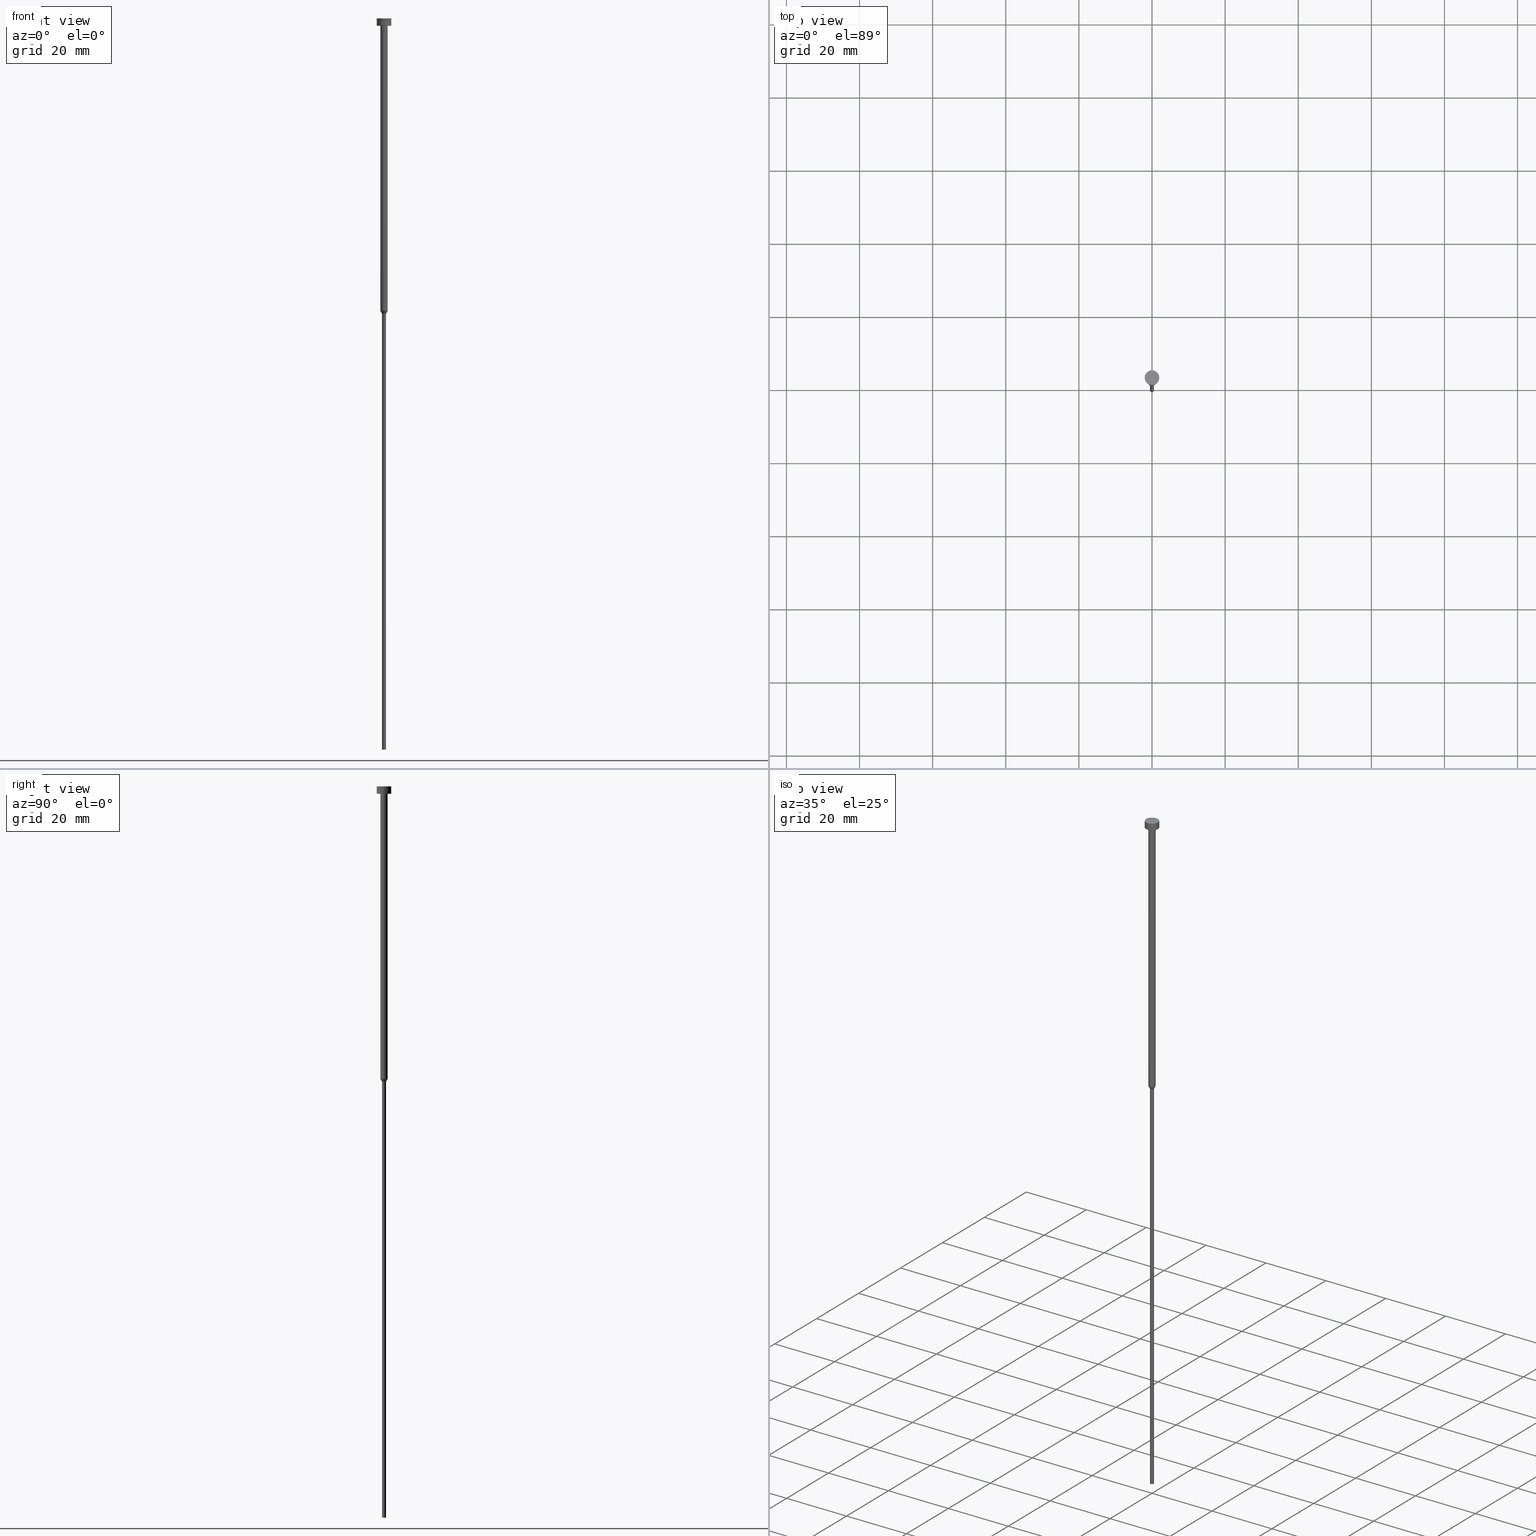
[diagram: canonical four-view strip — front | top / right | iso, engineering-drawing reading convention]
A machine part, canonical four-view strip (front | top / right | iso — engineering-drawing reading convention). The complete STEP part file that produces these views, byte-faithful:
ISO-10303-21;
HEADER;
FILE_DESCRIPTION (( 'STEP AP203' ),
    '1' );
FILE_NAME ('cb18.STEP',
    '2023-02-13T11:49:43',
    ( '' ),
    ( '' ),
    'SwSTEP 2.0',
    'SolidWorks 2019',
    '' );
FILE_SCHEMA (( 'CONFIG_CONTROL_DESIGN' ));
ENDSEC;

DATA;
#1 = DATE_AND_TIME ( #332, #293 ) ;
#2 = ORIENTED_EDGE ( 'NONE', *, *, #114, .F. ) ;
#3 = ORIENTED_EDGE ( 'NONE', *, *, #45, .T. ) ;
#4 = EDGE_CURVE ( 'NONE', #109, #78, #339, .T. ) ;
#5 = AXIS2_PLACEMENT_3D ( 'NONE', #18, #246, #345 ) ;
#6 = SHAPE_DEFINITION_REPRESENTATION ( #87, #342 ) ;
#7 = SECURITY_CLASSIFICATION_LEVEL ( 'unclassified' ) ;
#8 = EDGE_LOOP ( 'NONE', ( #317, #113, #299, #243 ) ) ;
#9 = CALENDAR_DATE ( 2023, 13, 2 ) ;
#10 = COORDINATED_UNIVERSAL_TIME_OFFSET ( 1, 0, .AHEAD. ) ;
#11 = ORIENTED_EDGE ( 'NONE', *, *, #203, .F. ) ;
#12 = CARTESIAN_POINT ( 'NONE',  ( 0.5500000000000000444, 0.000000000000000000, -80.77942286340599765 ) ) ;
#13 = EDGE_CURVE ( 'NONE', #78, #75, #134, .T. ) ;
#14 = PERSON ( 'NEUR�EN�', 'NEUR�EN�', 'NEUR�EN�', ('NEUR�EN�'), ('NEUR�EN�'), ('NEUR�EN�') ) ;
#15 = VECTOR ( 'NONE', #183, 1000.000000000000114 ) ;
#16 = CARTESIAN_POINT ( 'NONE',  ( 0.000000000000000000, 0.000000000000000000, -200.0000000000000000 ) ) ;
#17 = DIRECTION ( 'NONE',  ( 0.000000000000000000, -0.000000000000000000, 1.000000000000000000 ) ) ;
#18 = CARTESIAN_POINT ( 'NONE',  ( 0.000000000000000000, 0.000000000000000000, -200.0000000000000000 ) ) ;
#19 = PRODUCT_RELATED_PRODUCT_CATEGORY ( 'detail', '', ( #253 ) ) ;
#20 = VECTOR ( 'NONE', #130, 1000.000000000000000 ) ;
#21 = ORIENTED_EDGE ( 'NONE', *, *, #141, .F. ) ;
#22 = DIRECTION ( 'NONE',  ( 1.000000000000000000, 0.000000000000000000, 0.000000000000000000 ) ) ;
#23 = ADVANCED_FACE ( 'NONE', ( #295 ), #128, .T. ) ;
#24 = CARTESIAN_POINT ( 'NONE',  ( 1.000000000000003109, 0.000000000000000000, -80.00000000000000000 ) ) ;
#25 = VERTEX_POINT ( 'NONE', #122 ) ;
#26 = CIRCLE ( 'NONE', #319, 2.000000000000000000 ) ;
#27 = FACE_OUTER_BOUND ( 'NONE', #31, .T. ) ;
#28 = AXIS2_PLACEMENT_3D ( 'NONE', #53, #76, #222 ) ;
#29 = CALENDAR_DATE ( 2023, 13, 2 ) ;
#30 = CYLINDRICAL_SURFACE ( 'NONE', #228, 1.000000000000003331 ) ;
#31 = EDGE_LOOP ( 'NONE', ( #47, #154, #289, #40 ) ) ;
#32 = APPROVAL_STATUS ( 'not_yet_approved' ) ;
#33 = VERTEX_POINT ( 'NONE', #331 ) ;
#34 = EDGE_CURVE ( 'NONE', #64, #25, #159, .T. ) ;
#35 = ORIENTED_EDGE ( 'NONE', *, *, #257, .T. ) ;
#36 = DIRECTION ( 'NONE',  ( 1.000000000000000000, 0.000000000000000000, 0.000000000000000000 ) ) ;
#37 = APPROVAL_DATE_TIME ( #68, #54 ) ;
#38 = PERSON_AND_ORGANIZATION_ROLE ( 'design_supplier' ) ;
#39 = AXIS2_PLACEMENT_3D ( 'NONE', #234, #178, #36 ) ;
#40 = ORIENTED_EDGE ( 'NONE', *, *, #138, .F. ) ;
#41 = CARTESIAN_POINT ( 'NONE',  ( 0.000000000000000000, 0.000000000000000000, 0.000000000000000000 ) ) ;
#42 = DESIGN_CONTEXT ( 'detailed design', #326, 'design' ) ;
#43 = DIRECTION ( 'NONE',  ( 1.000000000000000000, 0.000000000000000000, 0.000000000000000000 ) ) ;
#44 = PLANE ( 'NONE',  #5 ) ;
#45 = EDGE_CURVE ( 'NONE', #231, #259, #129, .T. ) ;
#46 = DIRECTION ( 'NONE',  ( -0.000000000000000000, -0.000000000000000000, 1.000000000000000000 ) ) ;
#47 = ORIENTED_EDGE ( 'NONE', *, *, #306, .T. ) ;
#48 = AXIS2_PLACEMENT_3D ( 'NONE', #16, #212, #187 ) ;
#49 = ORIENTED_EDGE ( 'NONE', *, *, #84, .F. ) ;
#50 = CYLINDRICAL_SURFACE ( 'NONE', #99, 0.5499999999999999334 ) ;
#51 = FACE_OUTER_BOUND ( 'NONE', #8, .T. ) ;
#52 = DIRECTION ( 'NONE',  ( -0.000000000000000000, -0.000000000000000000, 1.000000000000000000 ) ) ;
#53 = CARTESIAN_POINT ( 'NONE',  ( 0.000000000000000000, 0.000000000000000000, 0.000000000000000000 ) ) ;
#54 = APPROVAL ( #258, 'NEUR�EN�' ) ;
#55 = PERSON_AND_ORGANIZATION ( #14, #308 ) ;
#56 = DIRECTION ( 'NONE',  ( 0.4999999999999993339, 0.000000000000000000, 0.8660254037844389297 ) ) ;
#57 = CONICAL_SURFACE ( 'NONE', #142, 1.000000000000003109, 0.5235987755982981495 ) ;
#58 = COORDINATED_UNIVERSAL_TIME_OFFSET ( 1, 0, .AHEAD. ) ;
#59 = PERSON_AND_ORGANIZATION_ROLE ( 'classification_officer' ) ;
#60 = ADVANCED_FACE ( 'NONE', ( #337 ), #137, .T. ) ;
#61 = EDGE_CURVE ( 'NONE', #259, #227, #279, .T. ) ;
#62 = ORIENTED_EDGE ( 'NONE', *, *, #13, .F. ) ;
#63 = DIRECTION ( 'NONE',  ( 1.000000000000000000, 0.000000000000000000, 0.000000000000000000 ) ) ;
#64 = VERTEX_POINT ( 'NONE', #107 ) ;
#65 = VECTOR ( 'NONE', #79, 1000.000000000000000 ) ;
#66 = DIRECTION ( 'NONE',  ( -0.000000000000000000, -0.000000000000000000, 1.000000000000000000 ) ) ;
#67 = CARTESIAN_POINT ( 'NONE',  ( 1.000000000000003109, 0.000000000000000000, -80.00000000000000000 ) ) ;
#68 = DATE_AND_TIME ( #211, #165 ) ;
#69 = DIRECTION ( 'NONE',  ( -0.000000000000000000, -0.000000000000000000, 1.000000000000000000 ) ) ;
#70 = CARTESIAN_POINT ( 'NONE',  ( 0.000000000000000000, 0.000000000000000000, -80.00000000000000000 ) ) ;
#71 = DIRECTION ( 'NONE',  ( 1.000000000000000000, 0.000000000000000000, 0.000000000000000000 ) ) ;
#72 = AXIS2_PLACEMENT_3D ( 'NONE', #169, #17, #185 ) ;
#73 = DIRECTION ( 'NONE',  ( 1.000000000000000000, 0.000000000000000000, 0.000000000000000000 ) ) ;
#74 = ADVANCED_FACE ( 'NONE', ( #313 ), #127, .T. ) ;
#75 = VERTEX_POINT ( 'NONE', #67 ) ;
#76 = DIRECTION ( 'NONE',  ( -0.000000000000000000, -0.000000000000000000, 1.000000000000000000 ) ) ;
#77 = CLOSED_SHELL ( 'NONE', ( #23, #74, #217, #166, #312, #352, #60, #173, #336, #125, #315 ) ) ;
#78 = VERTEX_POINT ( 'NONE', #12 ) ;
#79 = DIRECTION ( 'NONE',  ( -0.000000000000000000, -0.000000000000000000, 1.000000000000000000 ) ) ;
#80 = CARTESIAN_POINT ( 'NONE',  ( 0.5499999999999999334, 0.000000000000000000, 0.000000000000000000 ) ) ;
#81 = CIRCLE ( 'NONE', #149, 0.5500000000000000444 ) ;
#82 = APPROVAL_PERSON_ORGANIZATION ( #304, #54, #101 ) ;
#83 = CARTESIAN_POINT ( 'NONE',  ( 0.000000000000000000, 0.000000000000000000, 0.000000000000000000 ) ) ;
#84 = EDGE_CURVE ( 'NONE', #109, #191, #214, .T. ) ;
#85 = APPLICATION_PROTOCOL_DEFINITION ( 'international standard', 'config_control_design', 1994, #326 ) ;
#86 = COORDINATED_UNIVERSAL_TIME_OFFSET ( 1, 0, .AHEAD. ) ;
#87 = PRODUCT_DEFINITION_SHAPE ( 'NONE', 'NONE',  #296 ) ;
#88 =( NAMED_UNIT ( * ) SI_UNIT ( $, .STERADIAN. ) SOLID_ANGLE_UNIT ( ) );
#89 = EDGE_CURVE ( 'NONE', #75, #191, #123, .T. ) ;
#90 = CALENDAR_DATE ( 2023, 13, 2 ) ;
#91 = AXIS2_PLACEMENT_3D ( 'NONE', #350, #111, #22 ) ;
#92 = CC_DESIGN_APPROVAL ( #233, ( #168 ) ) ;
#93 = DIRECTION ( 'NONE',  ( -0.000000000000000000, -0.000000000000000000, 1.000000000000000000 ) ) ;
#94 = ORIENTED_EDGE ( 'NONE', *, *, #297, .T. ) ;
#95 = CARTESIAN_POINT ( 'NONE',  ( 0.000000000000000000, 0.000000000000000000, 0.000000000000000000 ) ) ;
#96 = PERSON_AND_ORGANIZATION_ROLE ( 'design_owner' ) ;
#97 = CARTESIAN_POINT ( 'NONE',  ( 0.000000000000000000, 0.000000000000000000, -2.000000000000000444 ) ) ;
#98 = DIRECTION ( 'NONE',  ( -0.000000000000000000, -0.000000000000000000, 1.000000000000000000 ) ) ;
#99 = AXIS2_PLACEMENT_3D ( 'NONE', #232, #98, #145 ) ;
#100 = CARTESIAN_POINT ( 'NONE',  ( -2.000000000000000000, 2.449293598294706414E-16, -2.000000000000000444 ) ) ;
#101 = APPROVAL_ROLE ( '' ) ;
#102 = DIRECTION ( 'NONE',  ( 1.000000000000000000, 0.000000000000000000, 0.000000000000000000 ) ) ;
#103 = CIRCLE ( 'NONE', #91, 2.000000000000000000 ) ;
#104 = LOCAL_TIME ( 12, 49, 43.00000000000000000, #58 ) ;
#105 = ORIENTED_EDGE ( 'NONE', *, *, #34, .T. ) ;
#106 = PLANE ( 'NONE',  #224 ) ;
#107 = CARTESIAN_POINT ( 'NONE',  ( 1.000000000000003553, 0.000000000000000000, -2.000000000000000444 ) ) ;
#108 = DIRECTION ( 'NONE',  ( 1.000000000000000000, 0.000000000000000000, 0.000000000000000000 ) ) ;
#109 = VERTEX_POINT ( 'NONE', #276 ) ;
#110 = FACE_OUTER_BOUND ( 'NONE', #146, .T. ) ;
#111 = DIRECTION ( 'NONE',  ( -0.000000000000000000, -0.000000000000000000, 1.000000000000000000 ) ) ;
#112 = CIRCLE ( 'NONE', #180, 0.5499999999999999334 ) ;
#113 = ORIENTED_EDGE ( 'NONE', *, *, #203, .T. ) ;
#114 = EDGE_CURVE ( 'NONE', #259, #231, #103, .T. ) ;
#115 = DIRECTION ( 'NONE',  ( -1.000000000000000000, 0.000000000000000000, -0.000000000000000000 ) ) ;
#116 = AXIS2_PLACEMENT_3D ( 'NONE', #97, #205, #43 ) ;
#117 = ORIENTED_EDGE ( 'NONE', *, *, #207, .F. ) ;
#118 = APPROVAL_DATE_TIME ( #270, #233 ) ;
#119 = PERSON_AND_ORGANIZATION ( #14, #308 ) ;
#120 = ORIENTED_EDGE ( 'NONE', *, *, #114, .T. ) ;
#121 = DATE_TIME_ROLE ( 'creation_date' ) ;
#122 = CARTESIAN_POINT ( 'NONE',  ( -1.000000000000003553, 1.224646799147357398E-16, -2.000000000000000444 ) ) ;
#123 = CIRCLE ( 'NONE', #252, 1.000000000000003109 ) ;
#124 = CARTESIAN_POINT ( 'NONE',  ( 0.000000000000000000, 0.000000000000000000, -2.000000000000000444 ) ) ;
#125 = ADVANCED_FACE ( 'NONE', ( #110 ), #322, .T. ) ;
#126 = CARTESIAN_POINT ( 'NONE',  ( 0.5499999999999999334, 0.000000000000000000, -200.0000000000000000 ) ) ;
#127 = CYLINDRICAL_SURFACE ( 'NONE', #201, 1.000000000000003331 ) ;
#128 = CYLINDRICAL_SURFACE ( 'NONE', #136, 2.000000000000000000 ) ;
#129 = CIRCLE ( 'NONE', #116, 2.000000000000000000 ) ;
#130 = DIRECTION ( 'NONE',  ( -0.000000000000000000, -0.000000000000000000, 1.000000000000000000 ) ) ;
#131 = LOCAL_TIME ( 12, 49, 43.00000000000000000, #307 ) ;
#132 = CARTESIAN_POINT ( 'NONE',  ( 0.000000000000000000, 0.000000000000000000, -200.0000000000000000 ) ) ;
#133 = DIRECTION ( 'NONE',  ( -0.000000000000000000, -0.000000000000000000, 1.000000000000000000 ) ) ;
#134 = LINE ( 'NONE', #24, #237 ) ;
#135 = CARTESIAN_POINT ( 'NONE',  ( -0.5499999999999999334, 6.735557395310441284E-17, 0.000000000000000000 ) ) ;
#136 = AXIS2_PLACEMENT_3D ( 'NONE', #95, #155, #157 ) ;
#137 = CONICAL_SURFACE ( 'NONE', #186, 1.000000000000003109, 0.5235987755982981495 ) ;
#138 = EDGE_CURVE ( 'NONE', #309, #78, #193, .T. ) ;
#139 = CARTESIAN_POINT ( 'NONE',  ( -2.000000000000000000, 2.449293598294706414E-16, -2.449293598294705921E-16 ) ) ;
#140 = DIRECTION ( 'NONE',  ( -0.000000000000000000, -0.000000000000000000, 1.000000000000000000 ) ) ;
#141 = EDGE_CURVE ( 'NONE', #328, #227, #26, .T. ) ;
#142 = AXIS2_PLACEMENT_3D ( 'NONE', #288, #189, #170 ) ;
#143 = CARTESIAN_POINT ( 'NONE',  ( 2.000000000000000000, 0.000000000000000000, 0.000000000000000000 ) ) ;
#144 = EDGE_LOOP ( 'NONE', ( #49, #347, #278, #11 ) ) ;
#145 = DIRECTION ( 'NONE',  ( 1.000000000000000000, 0.000000000000000000, 0.000000000000000000 ) ) ;
#146 = EDGE_LOOP ( 'NONE', ( #272, #120, #240, #117 ) ) ;
#147 = APPROVAL ( #32, 'NEUR�EN�' ) ;
#148 = EDGE_LOOP ( 'NONE', ( #3, #314, #21, #286 ) ) ;
#149 = AXIS2_PLACEMENT_3D ( 'NONE', #171, #197, #348 ) ;
#150 = MECHANICAL_CONTEXT ( 'NONE', #235, 'mechanical' ) ;
#151 = CC_DESIGN_SECURITY_CLASSIFICATION ( #208, ( #168 ) ) ;
#152 = APPROVAL_ROLE ( '' ) ;
#153 = COORDINATED_UNIVERSAL_TIME_OFFSET ( 1, 0, .AHEAD. ) ;
#154 = ORIENTED_EDGE ( 'NONE', *, *, #349, .T. ) ;
#155 = DIRECTION ( 'NONE',  ( -0.000000000000000000, -0.000000000000000000, 1.000000000000000000 ) ) ;
#156 = DIRECTION ( 'NONE',  ( -0.000000000000000000, -0.000000000000000000, 1.000000000000000000 ) ) ;
#157 = DIRECTION ( 'NONE',  ( 1.000000000000000000, 0.000000000000000000, 0.000000000000000000 ) ) ;
#158 = EDGE_CURVE ( 'NONE', #78, #109, #81, .T. ) ;
#159 = CIRCLE ( 'NONE', #192, 1.000000000000003553 ) ;
#160 = UNCERTAINTY_MEASURE_WITH_UNIT (LENGTH_MEASURE( 1.000000000000000082E-05 ), #250, 'distance_accuracy_value', 'NONE');
#161 = DIRECTION ( 'NONE',  ( -0.000000000000000000, -0.000000000000000000, 1.000000000000000000 ) ) ;
#162 = CARTESIAN_POINT ( 'NONE',  ( 0.000000000000000000, 0.000000000000000000, -80.00000000000000000 ) ) ;
#163 = EDGE_LOOP ( 'NONE', ( #344, #176 ) ) ;
#164 = DIRECTION ( 'NONE',  ( -0.000000000000000000, -0.000000000000000000, 1.000000000000000000 ) ) ;
#165 = LOCAL_TIME ( 12, 49, 43.00000000000000000, #10 ) ;
#166 = ADVANCED_FACE ( 'NONE', ( #27 ), #221, .T. ) ;
#167 =( GEOMETRIC_REPRESENTATION_CONTEXT ( 3 ) GLOBAL_UNCERTAINTY_ASSIGNED_CONTEXT ( ( #160 ) ) GLOBAL_UNIT_ASSIGNED_CONTEXT ( ( #250, #351, #88 ) ) REPRESENTATION_CONTEXT ( 'NONE', 'WORKASPACE' ) );
#168 = PRODUCT_DEFINITION_FORMATION_WITH_SPECIFIED_SOURCE ( 'LIBOVOLN�', '', #253, .NOT_KNOWN. ) ;
#169 = CARTESIAN_POINT ( 'NONE',  ( 0.000000000000000000, 0.000000000000000000, -1.224646799147352961E-16 ) ) ;
#170 = DIRECTION ( 'NONE',  ( 1.000000000000000000, 0.000000000000000000, 0.000000000000000000 ) ) ;
#171 = CARTESIAN_POINT ( 'NONE',  ( 0.000000000000000000, 0.000000000000000000, -80.77942286340599765 ) ) ;
#172 = APPROVAL_ROLE ( '' ) ;
#173 = ADVANCED_FACE ( 'NONE', ( #51 ), #30, .T. ) ;
#174 = CIRCLE ( 'NONE', #39, 1.000000000000003109 ) ;
#175 = CC_DESIGN_APPROVAL ( #54, ( #208 ) ) ;
#176 = ORIENTED_EDGE ( 'NONE', *, *, #207, .T. ) ;
#177 = EDGE_CURVE ( 'NONE', #231, #328, #199, .T. ) ;
#178 = DIRECTION ( 'NONE',  ( -0.000000000000000000, -0.000000000000000000, 1.000000000000000000 ) ) ;
#179 = ORIENTED_EDGE ( 'NONE', *, *, #34, .F. ) ;
#180 = AXIS2_PLACEMENT_3D ( 'NONE', #132, #343, #108 ) ;
#181 = EDGE_LOOP ( 'NONE', ( #316, #340, #239, #62 ) ) ;
#182 = CC_DESIGN_PERSON_AND_ORGANIZATION_ASSIGNMENT ( #261, #38, ( #168 ) ) ;
#183 = DIRECTION ( 'NONE',  ( -0.4999999999999993339, 6.123233995736757408E-17, 0.8660254037844389297 ) ) ;
#184 = DIRECTION ( 'NONE',  ( -0.000000000000000000, -0.000000000000000000, 1.000000000000000000 ) ) ;
#185 = DIRECTION ( 'NONE',  ( 1.000000000000000000, 0.000000000000000000, 0.000000000000000000 ) ) ;
#186 = AXIS2_PLACEMENT_3D ( 'NONE', #162, #164, #102 ) ;
#187 = DIRECTION ( 'NONE',  ( 1.000000000000000000, 0.000000000000000000, 0.000000000000000000 ) ) ;
#188 = DIRECTION ( 'NONE',  ( 0.000000000000000000, 0.000000000000000000, -1.000000000000000000 ) ) ;
#189 = DIRECTION ( 'NONE',  ( -0.000000000000000000, -0.000000000000000000, 1.000000000000000000 ) ) ;
#190 = DIRECTION ( 'NONE',  ( 1.000000000000000000, 0.000000000000000000, 0.000000000000000000 ) ) ;
#191 = VERTEX_POINT ( 'NONE', #301 ) ;
#192 = AXIS2_PLACEMENT_3D ( 'NONE', #335, #69, #71 ) ;
#193 = LINE ( 'NONE', #80, #292 ) ;
#194 = FACE_OUTER_BOUND ( 'NONE', #163, .T. ) ;
#195 = LINE ( 'NONE', #135, #65 ) ;
#196 = FACE_OUTER_BOUND ( 'NONE', #204, .T. ) ;
#197 = DIRECTION ( 'NONE',  ( -0.000000000000000000, -0.000000000000000000, 1.000000000000000000 ) ) ;
#198 = VECTOR ( 'NONE', #248, 1000.000000000000000 ) ;
#199 = LINE ( 'NONE', #143, #198 ) ;
#200 = ORIENTED_EDGE ( 'NONE', *, *, #349, .F. ) ;
#201 = AXIS2_PLACEMENT_3D ( 'NONE', #41, #156, #260 ) ;
#202 = ORIENTED_EDGE ( 'NONE', *, *, #138, .T. ) ;
#203 = EDGE_CURVE ( 'NONE', #191, #75, #174, .T. ) ;
#204 = EDGE_LOOP ( 'NONE', ( #200, #236, #202, #251 ) ) ;
#205 = DIRECTION ( 'NONE',  ( -0.000000000000000000, -0.000000000000000000, 1.000000000000000000 ) ) ;
#206 = CIRCLE ( 'NONE', #48, 0.5499999999999999334 ) ;
#207 = EDGE_CURVE ( 'NONE', #227, #328, #238, .T. ) ;
#208 = SECURITY_CLASSIFICATION ( '', '', #7 ) ;
#209 = LINE ( 'NONE', #310, #262 ) ;
#210 = CARTESIAN_POINT ( 'NONE',  ( -1.000000000000003109, 1.224646799147356905E-16, -80.00000000000000000 ) ) ;
#211 = CALENDAR_DATE ( 2023, 13, 2 ) ;
#212 = DIRECTION ( 'NONE',  ( -0.000000000000000000, -0.000000000000000000, 1.000000000000000000 ) ) ;
#213 = FACE_OUTER_BOUND ( 'NONE', #219, .T. ) ;
#214 = LINE ( 'NONE', #210, #15 ) ;
#215 = EDGE_LOOP ( 'NONE', ( #303, #284 ) ) ;
#216 = DIRECTION ( 'NONE',  ( 1.000000000000000000, 0.000000000000000000, 0.000000000000000000 ) ) ;
#217 = ADVANCED_FACE ( 'NONE', ( #346 ), #57, .T. ) ;
#218 = CARTESIAN_POINT ( 'NONE',  ( 0.000000000000000000, 0.000000000000000000, -80.77942286340599765 ) ) ;
#219 = EDGE_LOOP ( 'NONE', ( #254, #2 ) ) ;
#220 = AXIS2_PLACEMENT_3D ( 'NONE', #321, #52, #190 ) ;
#221 = CYLINDRICAL_SURFACE ( 'NONE', #282, 0.5499999999999999334 ) ;
#222 = DIRECTION ( 'NONE',  ( 1.000000000000000000, 0.000000000000000000, 0.000000000000000000 ) ) ;
#223 = DIRECTION ( 'NONE',  ( -0.000000000000000000, -0.000000000000000000, 1.000000000000000000 ) ) ;
#224 = AXIS2_PLACEMENT_3D ( 'NONE', #281, #188, #115 ) ;
#225 = APPROVAL_DATE_TIME ( #226, #147 ) ;
#226 = DATE_AND_TIME ( #9, #131 ) ;
#227 = VERTEX_POINT ( 'NONE', #139 ) ;
#228 = AXIS2_PLACEMENT_3D ( 'NONE', #271, #93, #256 ) ;
#229 = DATE_AND_TIME ( #90, #245 ) ;
#230 = PERSON_AND_ORGANIZATION ( #14, #308 ) ;
#231 = VERTEX_POINT ( 'NONE', #247 ) ;
#232 = CARTESIAN_POINT ( 'NONE',  ( 0.000000000000000000, 0.000000000000000000, 0.000000000000000000 ) ) ;
#233 = APPROVAL ( #298, 'NEUR�EN�' ) ;
#234 = CARTESIAN_POINT ( 'NONE',  ( 0.000000000000000000, 0.000000000000000000, -80.00000000000000000 ) ) ;
#235 = APPLICATION_CONTEXT ( 'configuration controlled 3d designs of mechanical parts and assemblies' ) ;
#236 = ORIENTED_EDGE ( 'NONE', *, *, #302, .T. ) ;
#237 = VECTOR ( 'NONE', #56, 1000.000000000000114 ) ;
#238 = CIRCLE ( 'NONE', #220, 2.000000000000000000 ) ;
#239 = ORIENTED_EDGE ( 'NONE', *, *, #89, .F. ) ;
#240 = ORIENTED_EDGE ( 'NONE', *, *, #177, .T. ) ;
#241 = CC_DESIGN_PERSON_AND_ORGANIZATION_ASSIGNMENT ( #280, #275, ( #168 ) ) ;
#242 = EDGE_CURVE ( 'NONE', #75, #64, #285, .T. ) ;
#243 = ORIENTED_EDGE ( 'NONE', *, *, #257, .F. ) ;
#244 = AXIS2_PLACEMENT_3D ( 'NONE', #124, #184, #265 ) ;
#245 = LOCAL_TIME ( 12, 49, 43.00000000000000000, #86 ) ;
#246 = DIRECTION ( 'NONE',  ( 0.000000000000000000, 0.000000000000000000, -1.000000000000000000 ) ) ;
#247 = CARTESIAN_POINT ( 'NONE',  ( 2.000000000000000000, 0.000000000000000000, -2.000000000000000444 ) ) ;
#248 = DIRECTION ( 'NONE',  ( -0.000000000000000000, -0.000000000000000000, 1.000000000000000000 ) ) ;
#249 = ORIENTED_EDGE ( 'NONE', *, *, #242, .F. ) ;
#250 =( LENGTH_UNIT ( ) NAMED_UNIT ( * ) SI_UNIT ( .MILLI., .METRE. ) );
#251 = ORIENTED_EDGE ( 'NONE', *, *, #4, .F. ) ;
#252 = AXIS2_PLACEMENT_3D ( 'NONE', #70, #161, #73 ) ;
#253 = PRODUCT ( 'cb18', 'cb18', '', ( #150 ) ) ;
#254 = ORIENTED_EDGE ( 'NONE', *, *, #45, .F. ) ;
#255 = CC_DESIGN_DATE_AND_TIME_ASSIGNMENT ( #229, #121, ( #296 ) ) ;
#256 = DIRECTION ( 'NONE',  ( 1.000000000000000000, 0.000000000000000000, 0.000000000000000000 ) ) ;
#257 = EDGE_CURVE ( 'NONE', #25, #64, #287, .T. ) ;
#258 = APPROVAL_STATUS ( 'not_yet_approved' ) ;
#259 = VERTEX_POINT ( 'NONE', #100 ) ;
#260 = DIRECTION ( 'NONE',  ( 1.000000000000000000, 0.000000000000000000, 0.000000000000000000 ) ) ;
#261 = PERSON_AND_ORGANIZATION ( #14, #308 ) ;
#262 = VECTOR ( 'NONE', #66, 1000.000000000000000 ) ;
#263 = CARTESIAN_POINT ( 'NONE',  ( -2.000000000000000000, 2.449293598294706414E-16, 0.000000000000000000 ) ) ;
#264 = CARTESIAN_POINT ( 'NONE',  ( 1.000000000000003331, 0.000000000000000000, 0.000000000000000000 ) ) ;
#265 = DIRECTION ( 'NONE',  ( 1.000000000000000000, 0.000000000000000000, 0.000000000000000000 ) ) ;
#266 = APPLICATION_PROTOCOL_DEFINITION ( 'international standard', 'config_control_design', 1994, #235 ) ;
#267 = CC_DESIGN_PERSON_AND_ORGANIZATION_ASSIGNMENT ( #353, #96, ( #253 ) ) ;
#268 = MANIFOLD_SOLID_BREP ( 'Rotovat1', #77 ) ;
#269 = APPROVAL_PERSON_ORGANIZATION ( #55, #233, #172 ) ;
#270 = DATE_AND_TIME ( #29, #104 ) ;
#271 = CARTESIAN_POINT ( 'NONE',  ( 0.000000000000000000, 0.000000000000000000, 0.000000000000000000 ) ) ;
#272 = ORIENTED_EDGE ( 'NONE', *, *, #61, .F. ) ;
#273 = CC_DESIGN_PERSON_AND_ORGANIZATION_ASSIGNMENT ( #119, #325, ( #296 ) ) ;
#274 = EDGE_LOOP ( 'NONE', ( #105, #35 ) ) ;
#275 = PERSON_AND_ORGANIZATION_ROLE ( 'creator' ) ;
#276 = CARTESIAN_POINT ( 'NONE',  ( -0.5500000000000000444, 6.735557395310442516E-17, -80.77942286340599765 ) ) ;
#277 = CC_DESIGN_APPROVAL ( #147, ( #296 ) ) ;
#278 = ORIENTED_EDGE ( 'NONE', *, *, #13, .T. ) ;
#279 = LINE ( 'NONE', #263, #20 ) ;
#280 = PERSON_AND_ORGANIZATION ( #14, #308 ) ;
#281 = CARTESIAN_POINT ( 'NONE',  ( 0.000000000000000000, -2.000000000000000000, -2.000000000000000444 ) ) ;
#282 = AXIS2_PLACEMENT_3D ( 'NONE', #83, #320, #290 ) ;
#283 = FACE_OUTER_BOUND ( 'NONE', #215, .T. ) ;
#284 = ORIENTED_EDGE ( 'NONE', *, *, #302, .F. ) ;
#285 = LINE ( 'NONE', #264, #323 ) ;
#286 = ORIENTED_EDGE ( 'NONE', *, *, #177, .F. ) ;
#287 = CIRCLE ( 'NONE', #244, 1.000000000000003553 ) ;
#288 = CARTESIAN_POINT ( 'NONE',  ( 0.000000000000000000, 0.000000000000000000, -80.00000000000000000 ) ) ;
#289 = ORIENTED_EDGE ( 'NONE', *, *, #158, .F. ) ;
#290 = DIRECTION ( 'NONE',  ( 1.000000000000000000, 0.000000000000000000, 0.000000000000000000 ) ) ;
#291 = PLANE ( 'NONE',  #72 ) ;
#292 = VECTOR ( 'NONE', #133, 1000.000000000000000 ) ;
#293 = LOCAL_TIME ( 12, 49, 43.00000000000000000, #153 ) ;
#294 = CARTESIAN_POINT ( 'NONE',  ( 0.000000000000000000, 0.000000000000000000, -2.449293598294705921E-16 ) ) ;
#295 = FACE_OUTER_BOUND ( 'NONE', #148, .T. ) ;
#296 = PRODUCT_DEFINITION ( 'NEZN�M�', '', #168, #42 ) ;
#297 = EDGE_CURVE ( 'NONE', #191, #25, #209, .T. ) ;
#298 = APPROVAL_STATUS ( 'not_yet_approved' ) ;
#299 = ORIENTED_EDGE ( 'NONE', *, *, #242, .T. ) ;
#300 = CARTESIAN_POINT ( 'NONE',  ( 0.000000000000000000, 0.000000000000000000, 0.000000000000000000 ) ) ;
#301 = CARTESIAN_POINT ( 'NONE',  ( -1.000000000000003109, 1.224646799147356905E-16, -80.00000000000000000 ) ) ;
#302 = EDGE_CURVE ( 'NONE', #33, #309, #112, .T. ) ;
#303 = ORIENTED_EDGE ( 'NONE', *, *, #306, .F. ) ;
#304 = PERSON_AND_ORGANIZATION ( #14, #308 ) ;
#305 = EDGE_LOOP ( 'NONE', ( #355, #94, #179, #249 ) ) ;
#306 = EDGE_CURVE ( 'NONE', #309, #33, #206, .T. ) ;
#307 = COORDINATED_UNIVERSAL_TIME_OFFSET ( 1, 0, .AHEAD. ) ;
#308 = ORGANIZATION ( 'NEUR�EN�', 'NEUR�EN�', '' ) ;
#309 = VERTEX_POINT ( 'NONE', #126 ) ;
#310 = CARTESIAN_POINT ( 'NONE',  ( -1.000000000000003331, 1.224646799147357151E-16, 0.000000000000000000 ) ) ;
#311 = CC_DESIGN_PERSON_AND_ORGANIZATION_ASSIGNMENT ( #230, #59, ( #208 ) ) ;
#312 = ADVANCED_FACE ( 'NONE', ( #283 ), #44, .T. ) ;
#313 = FACE_OUTER_BOUND ( 'NONE', #305, .T. ) ;
#314 = ORIENTED_EDGE ( 'NONE', *, *, #61, .T. ) ;
#315 = ADVANCED_FACE ( 'NONE', ( #194 ), #291, .T. ) ;
#316 = ORIENTED_EDGE ( 'NONE', *, *, #158, .T. ) ;
#317 = ORIENTED_EDGE ( 'NONE', *, *, #297, .F. ) ;
#318 = CARTESIAN_POINT ( 'NONE',  ( 2.000000000000000000, 0.000000000000000000, -2.449293598294705921E-16 ) ) ;
#319 = AXIS2_PLACEMENT_3D ( 'NONE', #294, #223, #324 ) ;
#320 = DIRECTION ( 'NONE',  ( -0.000000000000000000, -0.000000000000000000, 1.000000000000000000 ) ) ;
#321 = CARTESIAN_POINT ( 'NONE',  ( 0.000000000000000000, 0.000000000000000000, -2.449293598294705921E-16 ) ) ;
#322 = CYLINDRICAL_SURFACE ( 'NONE', #28, 2.000000000000000000 ) ;
#323 = VECTOR ( 'NONE', #46, 1000.000000000000000 ) ;
#324 = DIRECTION ( 'NONE',  ( 1.000000000000000000, 0.000000000000000000, 0.000000000000000000 ) ) ;
#325 = PERSON_AND_ORGANIZATION_ROLE ( 'creator' ) ;
#326 = APPLICATION_CONTEXT ( 'configuration controlled 3d designs of mechanical parts and assemblies' ) ;
#327 = PERSON_AND_ORGANIZATION ( #14, #308 ) ;
#328 = VERTEX_POINT ( 'NONE', #318 ) ;
#329 = DIRECTION ( 'NONE',  ( 0.000000000000000000, 0.000000000000000000, 1.000000000000000000 ) ) ;
#330 = DATE_TIME_ROLE ( 'classification_date' ) ;
#331 = CARTESIAN_POINT ( 'NONE',  ( -0.5499999999999999334, 6.735557395310441284E-17, -200.0000000000000000 ) ) ;
#332 = CALENDAR_DATE ( 2023, 13, 2 ) ;
#333 = AXIS2_PLACEMENT_3D ( 'NONE', #218, #140, #216 ) ;
#334 = APPROVAL_PERSON_ORGANIZATION ( #327, #147, #152 ) ;
#335 = CARTESIAN_POINT ( 'NONE',  ( 0.000000000000000000, 0.000000000000000000, -2.000000000000000444 ) ) ;
#336 = ADVANCED_FACE ( 'NONE', ( #341, #213 ), #106, .T. ) ;
#337 = FACE_OUTER_BOUND ( 'NONE', #144, .T. ) ;
#338 = CC_DESIGN_DATE_AND_TIME_ASSIGNMENT ( #1, #330, ( #208 ) ) ;
#339 = CIRCLE ( 'NONE', #333, 0.5500000000000000444 ) ;
#340 = ORIENTED_EDGE ( 'NONE', *, *, #84, .T. ) ;
#341 = FACE_BOUND ( 'NONE', #274, .T. ) ;
#342 = ADVANCED_BREP_SHAPE_REPRESENTATION ( 'cb18', ( #268, #354 ), #167 ) ;
#343 = DIRECTION ( 'NONE',  ( -0.000000000000000000, -0.000000000000000000, 1.000000000000000000 ) ) ;
#344 = ORIENTED_EDGE ( 'NONE', *, *, #141, .T. ) ;
#345 = DIRECTION ( 'NONE',  ( -1.000000000000000000, 0.000000000000000000, -0.000000000000000000 ) ) ;
#346 = FACE_OUTER_BOUND ( 'NONE', #181, .T. ) ;
#347 = ORIENTED_EDGE ( 'NONE', *, *, #4, .T. ) ;
#348 = DIRECTION ( 'NONE',  ( 1.000000000000000000, 0.000000000000000000, 0.000000000000000000 ) ) ;
#349 = EDGE_CURVE ( 'NONE', #33, #109, #195, .T. ) ;
#350 = CARTESIAN_POINT ( 'NONE',  ( 0.000000000000000000, 0.000000000000000000, -2.000000000000000444 ) ) ;
#351 =( NAMED_UNIT ( * ) PLANE_ANGLE_UNIT ( ) SI_UNIT ( $, .RADIAN. ) );
#352 = ADVANCED_FACE ( 'NONE', ( #196 ), #50, .T. ) ;
#353 = PERSON_AND_ORGANIZATION ( #14, #308 ) ;
#354 = AXIS2_PLACEMENT_3D ( 'NONE', #300, #329, #63 ) ;
#355 = ORIENTED_EDGE ( 'NONE', *, *, #89, .T. ) ;
ENDSEC;
END-ISO-10303-21;
